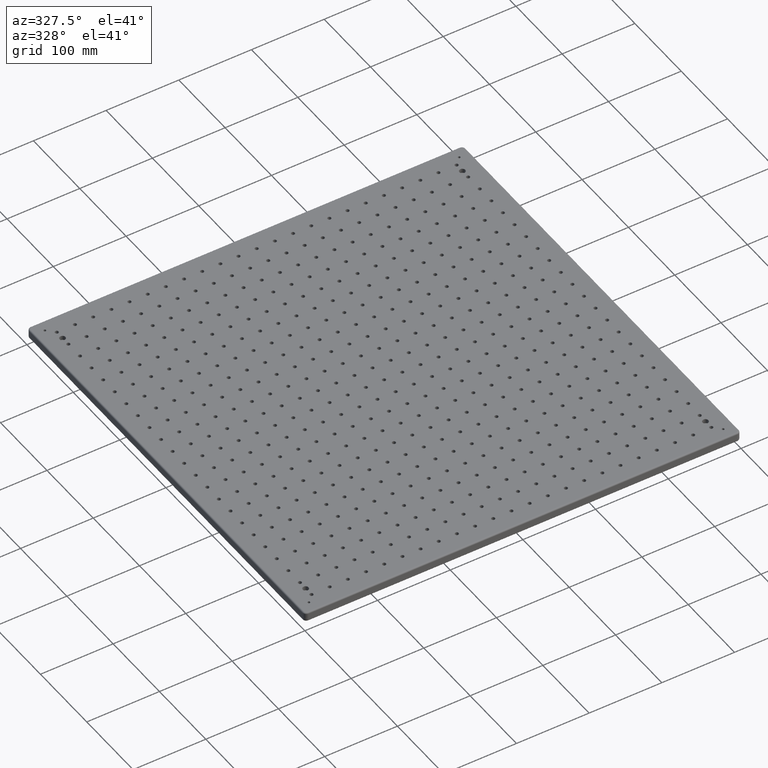
[diagram: clean part render]
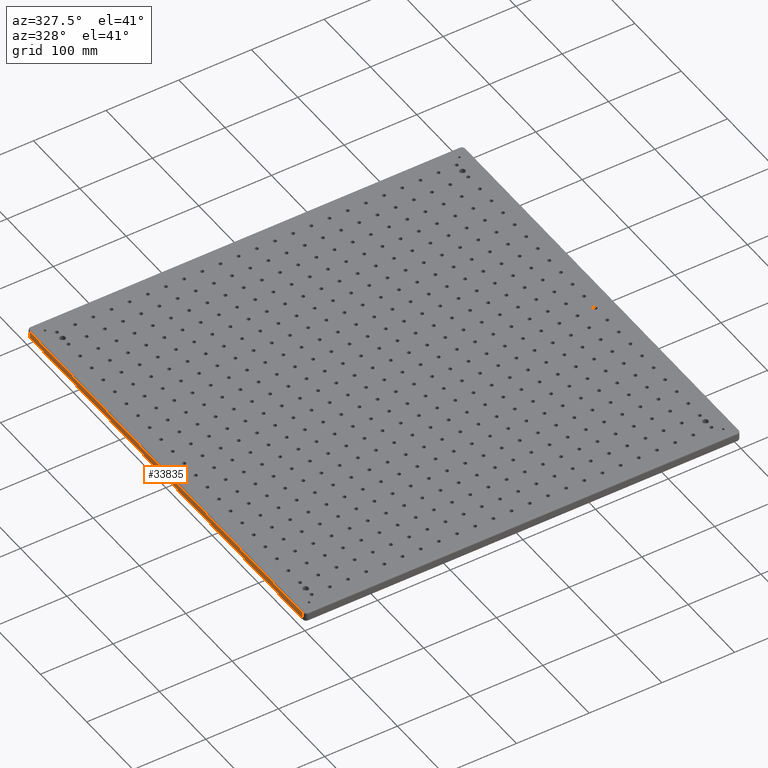
[diagram: same view with one face highlighted and labeled with its STEP entity id]
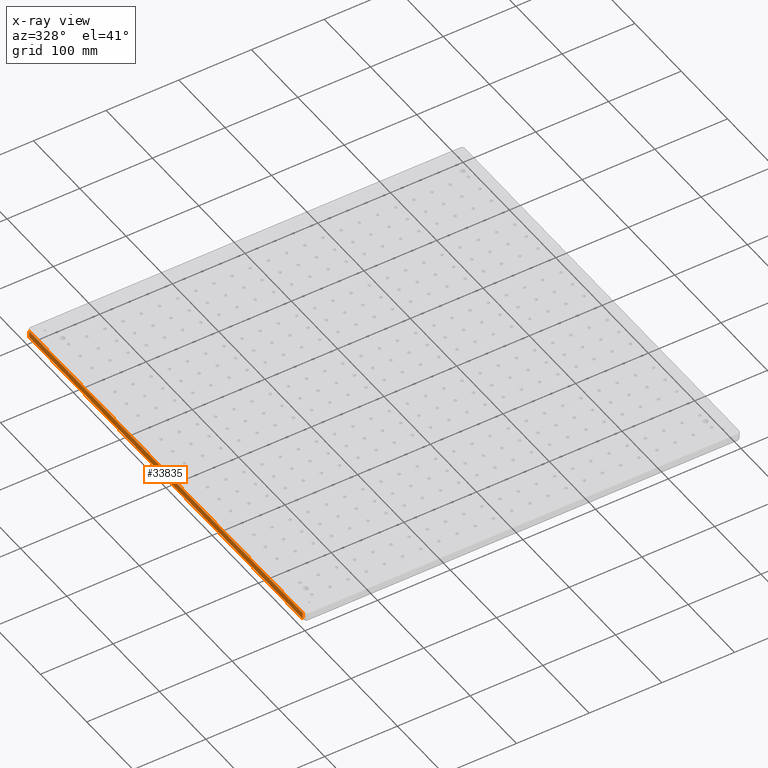
[diagram: x-ray of the same camera — body ghosted, the highlighted face saturated]
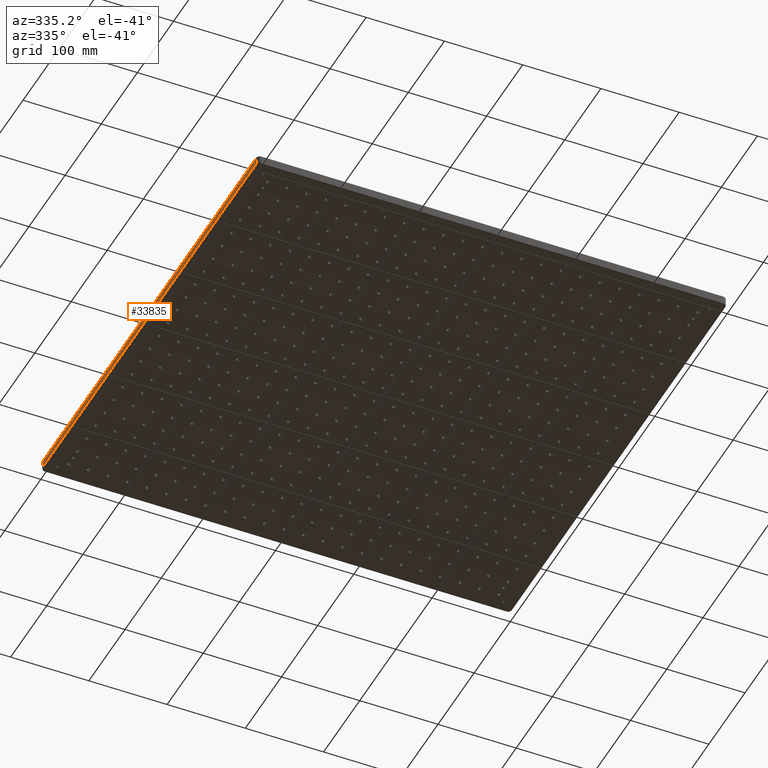
[diagram: same view with one face highlighted and labeled with its STEP entity id]
A machine part, auxiliary view. The second image highlights one B-rep face of the part: STEP entity #33835.
The next image is the same camera in x-ray: the body ghosted, the highlighted face saturated — about 0% of this face is hidden behind the body in this view.
A second angle (auxiliary view) of the same face is appended — the face is thin or edge-on in the first view.
In plain terms, the highlighted planar face has unit normal (-1, 0, 0).
Its self-contained STEP definition (entity closure, byte-faithful):
#543 = CARTESIAN_POINT ( 'NONE',  ( 0.0000000000000000000, 595.0000000000000000, -13.00000000000000000 ) ) ;
#683 = DIRECTION ( 'NONE',  ( -0.0000000000000000000, -0.0000000000000000000, -1.000000000000000000 ) ) ;
#2767 = VERTEX_POINT ( 'NONE', #40186 ) ;
#2843 = CARTESIAN_POINT ( 'NONE',  ( 0.0000000000000000000, 595.0000000000000000, -11.00000000000000000 ) ) ;
#3427 = EDGE_CURVE ( 'NONE', #26009, #2767, #17296, .T. ) ;
#4432 = LINE ( 'NONE', #25802, #21642 ) ;
#6003 = DIRECTION ( 'NONE',  ( -0.0000000000000000000, 1.000000000000000000, -0.0000000000000000000 ) ) ;
#6355 = CARTESIAN_POINT ( 'NONE',  ( 0.0000000000000000000, 4.999999999999998200, -13.00000000000000000 ) ) ;
#12457 = LINE ( 'NONE', #543, #36570 ) ;
#13394 = EDGE_CURVE ( 'NONE', #2767, #38393, #12457, .T. ) ;
#14591 = CARTESIAN_POINT ( 'NONE',  ( 0.0000000000000000000, 4.999999999999998200, -2.000000000000000000 ) ) ;
#17296 = LINE ( 'NONE', #34465, #23671 ) ;
#19214 = ORIENTED_EDGE ( 'NONE', *, *, #3427, .T. ) ;
#21642 = VECTOR ( 'NONE', #36150, 1000.000000000000000 ) ;
#23671 = VECTOR ( 'NONE', #6003, 1000.000000000000000 ) ;
#23717 = VECTOR ( 'NONE', #37320, 1000.000000000000000 ) ;
#25022 = FACE_OUTER_BOUND ( 'NONE', #25186, .T. ) ;
#25186 = EDGE_LOOP ( 'NONE', ( #28694, #30345, #27070, #19214 ) ) ;
#25802 = CARTESIAN_POINT ( 'NONE',  ( 0.0000000000000000000, 0.0000000000000000000, -11.00000000000000000 ) ) ;
#26009 = VERTEX_POINT ( 'NONE', #14591 ) ;
#27070 = ORIENTED_EDGE ( 'NONE', *, *, #32716, .T. ) ;
#27734 = VERTEX_POINT ( 'NONE', #38092 ) ;
#28694 = ORIENTED_EDGE ( 'NONE', *, *, #13394, .T. ) ;
#29569 = LINE ( 'NONE', #6355, #23717 ) ;
#29954 = PLANE ( 'NONE',  #33646 ) ;
#30345 = ORIENTED_EDGE ( 'NONE', *, *, #39587, .T. ) ;
#32631 = DIRECTION ( 'NONE',  ( 0.0000000000000000000, 0.0000000000000000000, 1.000000000000000000 ) ) ;
#32716 = EDGE_CURVE ( 'NONE', #27734, #26009, #29569, .T. ) ;
#33646 = AXIS2_PLACEMENT_3D ( 'NONE', #39370, #39108, #32631 ) ;
#33835 = ADVANCED_FACE ( 'NONE', ( #25022 ), #29954, .T. ) ;
#34465 = CARTESIAN_POINT ( 'NONE',  ( 0.0000000000000000000, 595.0000000000000000, -2.000000000000000000 ) ) ;
#36150 = DIRECTION ( 'NONE',  ( 0.0000000000000000000, -1.000000000000000000, 0.0000000000000000000 ) ) ;
#36570 = VECTOR ( 'NONE', #683, 1000.000000000000000 ) ;
#37320 = DIRECTION ( 'NONE',  ( 0.0000000000000000000, 0.0000000000000000000, 1.000000000000000000 ) ) ;
#38092 = CARTESIAN_POINT ( 'NONE',  ( 0.0000000000000000000, 4.999999999999998200, -11.00000000000000000 ) ) ;
#38393 = VERTEX_POINT ( 'NONE', #2843 ) ;
#39108 = DIRECTION ( 'NONE',  ( -1.000000000000000000, 0.0000000000000000000, 0.0000000000000000000 ) ) ;
#39370 = CARTESIAN_POINT ( 'NONE',  ( 0.0000000000000000000, 0.0000000000000000000, -13.00000000000000000 ) ) ;
#39587 = EDGE_CURVE ( 'NONE', #38393, #27734, #4432, .T. ) ;
#40186 = CARTESIAN_POINT ( 'NONE',  ( 0.0000000000000000000, 595.0000000000000000, -2.000000000000000000 ) ) ;